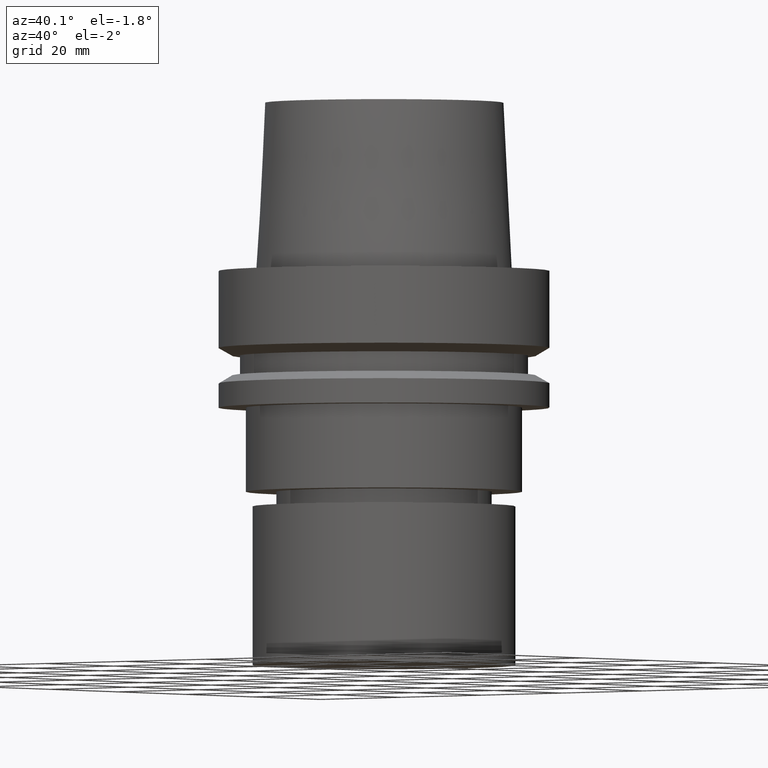
[diagram: clean part render]
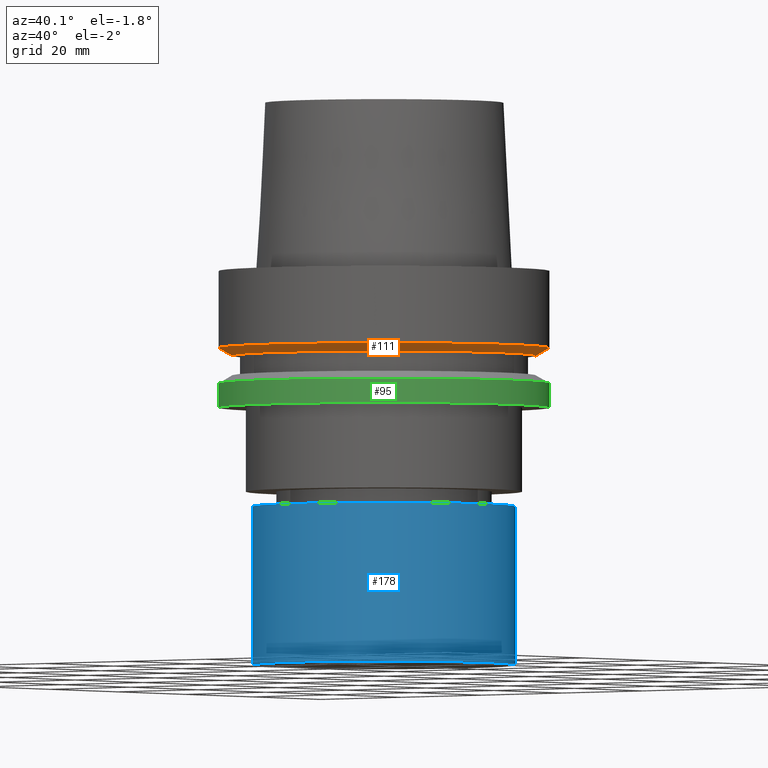
[diagram: same view with three faces highlighted in distinct colors, each labeled with its STEP entity id]
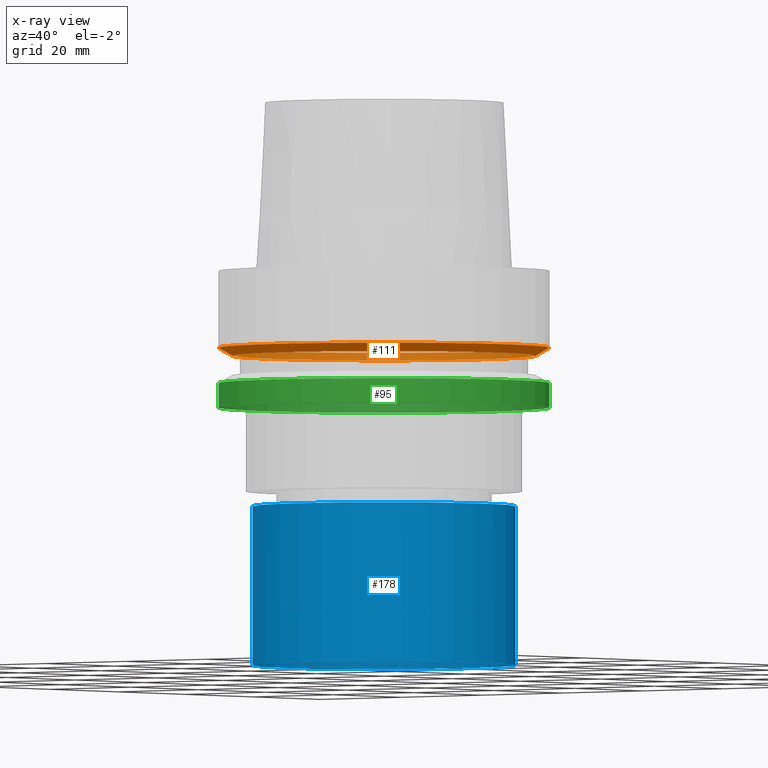
[diagram: x-ray of the same camera — body ghosted, the three highlighted faces saturated]
A machine part, auxiliary view with three faces highlighted in distinct colors.
The next image is the same camera in x-ray (body ghosted, the three faces saturated) — at least one of them is partly hidden behind the body in this view.
Their STEP definitions:

[orange] entity #111 — the highlighted conical surface has half-angle 60 deg.
#106=EDGE_CURVE('Unnamed[1]',#249,#249,#250,.T.);
#111=ADVANCED_FACE('Unnamed[1]',(#256,#257),#258,.T.);
#142=EDGE_CURVE('Unnamed[1]',#303,#303,#304,.T.);
#249=VERTEX_POINT('',#435);
#250=CIRCLE('',#436,31.5);
#256=FACE_BOUND('',#444,.T.);
#257=FACE_BOUND('',#445,.T.);
#258=CONICAL_SURFACE('',#446,30.1987976320959,1.04719755119657);
#303=VERTEX_POINT('',#503);
#304=CIRCLE('',#504,28.8975952641919);
#435=CARTESIAN_POINT('',(8.95369947681261E-016,31.5,-14.6225009252407));
#436=AXIS2_PLACEMENT_3D('',#634,#635,#636);
#444=EDGE_LOOP('',(#641));
#445=EDGE_LOOP('',(#642));
#446=AXIS2_PLACEMENT_3D('',#643,#644,#645);
#503=CARTESIAN_POINT('',(9.87371481812551E-016,28.8975952641919,-16.125));
#504=AXIS2_PLACEMENT_3D('',#691,#692,#693);
#634=CARTESIAN_POINT('',(8.95369947681262E-016,1.79073989536252E-015,-14.6225009252407));
#635=DIRECTION('',(-6.12323399573677E-017,-1.22464679914735E-016,1.0));
#636=DIRECTION('',(-1.23259516440783E-032,1.0,1.22464679914735E-016));
#641=ORIENTED_EDGE('',*,*,#106,.F.);
#642=ORIENTED_EDGE('',*,*,#142,.T.);
#643=CARTESIAN_POINT('',(9.41370714746907E-016,1.88274142949381E-015,-15.3737504626203));
#644=DIRECTION('',(-6.12323399573677E-017,-1.22464679914735E-016,1.0));
#645=DIRECTION('',(-1.23259516440783E-032,1.0,1.22464679914735E-016));
#691=CARTESIAN_POINT('',(9.87371481812552E-016,1.9747429636251E-015,-16.125));
#692=DIRECTION('',(-6.12323399573677E-017,-1.22464679914735E-016,1.0));
#693=DIRECTION('',(-1.23259516440783E-032,1.0,1.22464679914735E-016));

[blue] entity #178 — the highlighted cylindrical surface (bore or boss wall) has radius 25 mm, axis along (0, 0, -1).
#123=EDGE_CURVE('Unnamed[1]',#275,#275,#276,.T.);
#128=EDGE_CURVE('Unnamed[1]',#283,#283,#284,.T.);
#178=ADVANCED_FACE('Unnamed[1]',(#358,#359),#360,.T.);
#275=VERTEX_POINT('',#468);
#276=CIRCLE('',#469,25.0);
#283=VERTEX_POINT('',#478);
#284=CIRCLE('',#479,25.0);
#358=FACE_BOUND('',#572,.T.);
#359=FACE_BOUND('',#573,.T.);
#360=CYLINDRICAL_SURFACE('',#574,25.0);
#468=CARTESIAN_POINT('',(4.59242549680257E-015,25.0,-75.0));
#469=AXIS2_PLACEMENT_3D('',#663,#664,#665);
#478=CARTESIAN_POINT('',(2.74320883009007E-015,25.0,-44.8));
#479=AXIS2_PLACEMENT_3D('',#672,#673,#674);
#572=EDGE_LOOP('',(#753));
#573=EDGE_LOOP('',(#754));
#574=AXIS2_PLACEMENT_3D('',#755,#756,#757);
#663=CARTESIAN_POINT('',(4.59242549680257E-015,9.18485099360515E-015,-75.0));
#664=DIRECTION('',(6.12323399573677E-017,1.22464679914735E-016,-1.0));
#665=DIRECTION('',(-1.23259516440783E-032,1.0,1.22464679914735E-016));
#672=CARTESIAN_POINT('',(2.74320883009007E-015,5.48641766018014E-015,-44.8));
#673=DIRECTION('',(6.12323399573677E-017,1.22464679914735E-016,-1.0));
#674=DIRECTION('',(-1.23259516440783E-032,1.0,1.22464679914735E-016));
#753=ORIENTED_EDGE('',*,*,#123,.F.);
#754=ORIENTED_EDGE('',*,*,#128,.T.);
#755=CARTESIAN_POINT('',(3.66781716344632E-015,7.33563432689264E-015,-59.9));
#756=DIRECTION('',(6.12323399573677E-017,1.22464679914735E-016,-1.0));
#757=DIRECTION('',(-1.23259516440783E-032,1.0,1.22464679914735E-016));

[green] entity #95 — the highlighted cylindrical surface (bore or boss wall) has radius 31.5 mm, axis along (-0, -0, 1).
#95=ADVANCED_FACE('Unnamed[1]',(#231,#232),#233,.T.);
#155=EDGE_CURVE('Unnamed[1]',#323,#323,#324,.T.);
#180=EDGE_CURVE('Unnamed[1]',#362,#362,#363,.T.);
#231=FACE_BOUND('',#413,.T.);
#232=FACE_BOUND('',#414,.T.);
#233=CYLINDRICAL_SURFACE('',#415,31.4999999999999);
#323=VERTEX_POINT('',#529);
#324=CIRCLE('',#530,31.5);
#362=VERTEX_POINT('',#577);
#363=CIRCLE('',#578,31.4999999999998);
#413=EDGE_LOOP('',(#612));
#414=EDGE_LOOP('',(#613));
#415=AXIS2_PLACEMENT_3D('',#614,#615,#616);
#529=CARTESIAN_POINT('',(1.30899429078397E-015,31.5,-21.3774990747592));
#530=AXIS2_PLACEMENT_3D('',#712,#713,#714);
#577=CARTESIAN_POINT('',(1.59204083889155E-015,31.4999999999998,-25.9999999999999));
#578=AXIS2_PLACEMENT_3D('',#758,#759,#760);
#612=ORIENTED_EDGE('',*,*,#155,.F.);
#613=ORIENTED_EDGE('',*,*,#180,.T.);
#614=CARTESIAN_POINT('',(1.45051756483776E-015,2.90103512967552E-015,-23.6887495373796));
#615=DIRECTION('',(-6.12323399573677E-017,-1.22464679914735E-016,1.0));
#616=DIRECTION('',(-1.23259516440783E-032,1.0,1.22464679914735E-016));
#712=CARTESIAN_POINT('',(1.30899429078397E-015,2.61798858156794E-015,-21.3774990747592));
#713=DIRECTION('',(-6.12323399573677E-017,-1.22464679914735E-016,1.0));
#714=DIRECTION('',(-1.23259516440783E-032,1.0,1.22464679914735E-016));
#758=CARTESIAN_POINT('',(1.59204083889155E-015,3.1840816777831E-015,-25.9999999999999));
#759=DIRECTION('',(-6.12323399573676E-017,-1.22464679914735E-016,1.0));
#760=DIRECTION('',(-1.23259516440783E-032,1.0,1.22464679914735E-016));